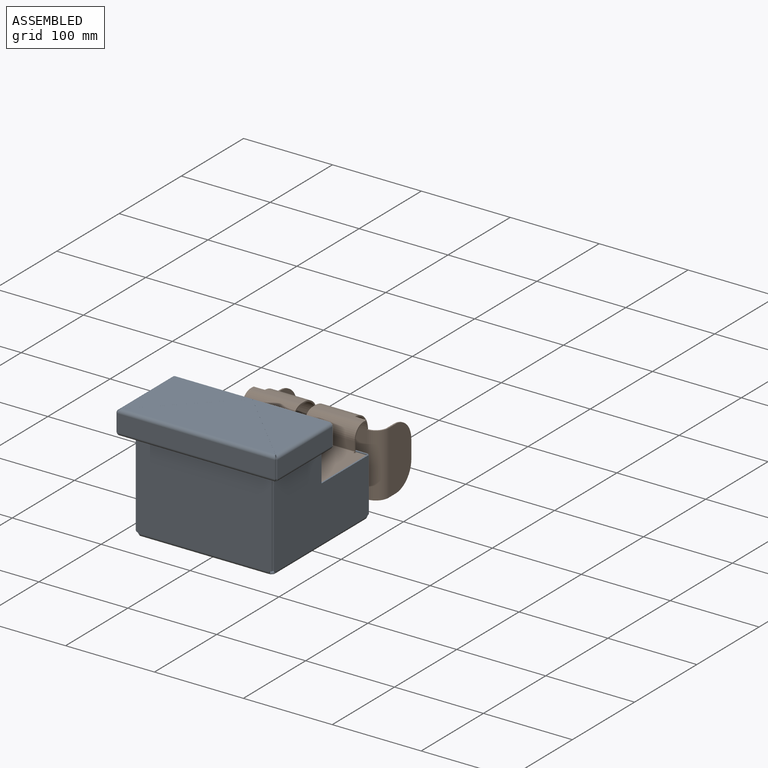
[diagram: assembled view]
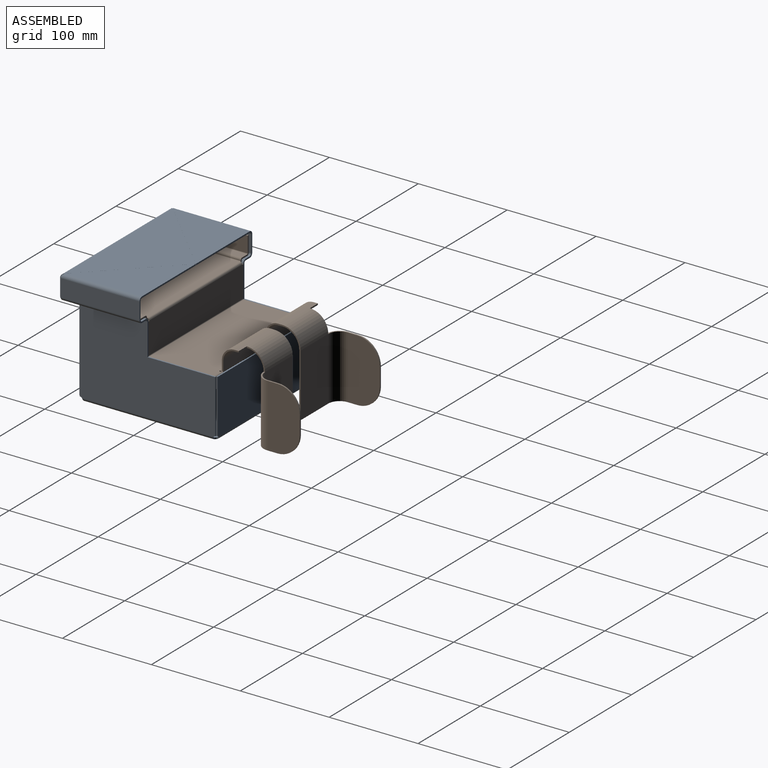
[diagram: assembled view, second angle]
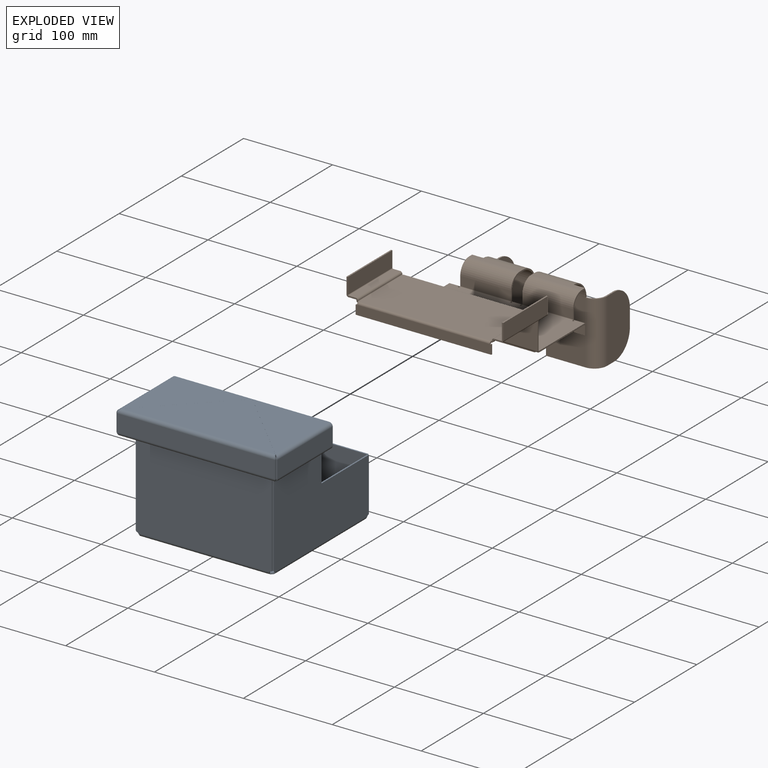
[diagram: exploded view]
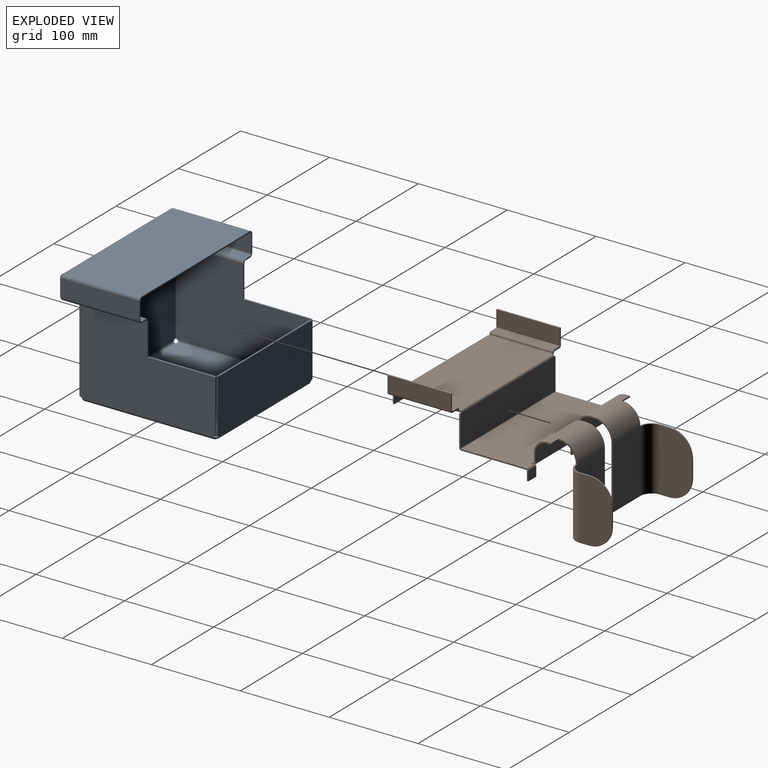
[diagram: exploded view, second angle]
ASSEMBLY  parts=2 mates=3
PART A: 122 faces, bbox 181x168.3x130.2 mm
  f0: plane 60.24x1.59mm, normal (1,0,0), area 95.6mm2, adj f2,f3,f4,f6
  f1: plane 60.24x1.59mm, normal (-1,0,0), area 95.6mm2, adj f2,f3,f4,f5
  f2: plane 152.35x1.59mm, normal (0,0,1), area 241.9mm2, adj f0,f1,f3,f4
  f3: plane 152.35x61.21mm, normal (0,1,0), area 9322.9mm2, adj f0,f1,f2,f5,f6,f9
  f4: plane 152.35x61.21mm, normal (0,-1,0), area 9322.9mm2, adj f0,f1,f2,f5,f6,f10
  f5: cylinder r=3.33mm len=2.26mm, axis (0,-1,0), area 4mm2, adj f1,f3,f4,f8
  f6: cylinder r=3.33mm len=2.26mm, axis (0,-1,0), area 4mm2, adj f0,f3,f4,f7
  f7: bspline ~3.87x3.87mm, area 8.5mm2, adj f6,f9,f10,f53
  f8: bspline ~3.87x3.87mm, area 8.5mm2, adj f5,f9,f10,f49
  f9: cylinder r=3.87mm len=147.83mm, axis (1,0,0), area 891.3mm2, adj f3,f7,f8,f11
  f10: cylinder r=2.29mm len=147.83mm, axis (1,0,0), area 526mm2, adj f4,f7,f8,f12
  f11: plane 147.83x147.83mm, normal (0,0,-1), area 21853.1mm2, adj f9,f15,f50,f54
  f12: plane 147.83x147.83mm, normal (0,0,1), area 21853.1mm2, adj f10,f16,f51,f55
  f13: bspline ~3.87x3.87mm, area 8.5mm2, adj f15,f16,f21,f52
  f14: bspline ~3.87x3.87mm, area 8.5mm2, adj f15,f16,f22,f48
  f15: cylinder r=3.87mm len=147.83mm, axis (1,0,0), area 891.3mm2, adj f11,f13,f14,f19
  f16: cylinder r=2.29mm len=147.83mm, axis (1,0,0), area 526mm2, adj f12,f13,f14,f20
  f17: plane 96.05x1.59mm, normal (1,0,0), area 152.5mm2, adj f19,f20,f21,f28
  f18: plane 96.05x1.59mm, normal (-1,0,0), area 152.5mm2, adj f19,f20,f22,f27
  f19: plane 152.35x97.03mm, normal (0,-1,0), area 14779.2mm2, adj f15,f17,f18,f21,f22,f30
  f20: plane 152.35x97.03mm, normal (0,1,0), area 14779.2mm2, adj f16,f17,f18,f21,f22,f29
  f21: cylinder r=3.33mm len=2.26mm, axis (0,1,0), area 4mm2, adj f13,f17,f19,f20
  f22: cylinder r=3.33mm len=2.26mm, axis (0,1,0), area 4mm2, adj f14,f18,f19,f20
  f23: plane 6.54x6.54mm, normal (-0.71,0.71,0), area 14.7mm2, adj f25,f26,f27,f31
  f24: plane 6.54x6.54mm, normal (0.71,0.71,0), area 14.7mm2, adj f25,f26,f28,f32
  f25: plane 173.19x6.54mm, normal (0,0,-1), area 1090mm2, adj f23,f24,f30,f33
  f26: plane 173.19x6.54mm, normal (0,0,1), area 1090mm2, adj f23,f24,f29,f34
  f27: bspline ~3.88x3.87mm, area 10.2mm2, adj f18,f23,f29,f30
  f28: bspline ~3.88x3.87mm, area 10.2mm2, adj f17,f24,f29,f30
  f29: cylinder r=3.87mm len=160.11mm, axis (-1,0,0), area 944.1mm2, adj f20,f26,f27,f28
  f30: cylinder r=2.29mm len=160.11mm, axis (-1,0,0), area 557.2mm2, adj f19,f25,f27,f28
  f31: bspline ~3.87x3.87mm, area 8.6mm2, adj f23,f33,f34,f35
  f32: bspline ~3.87x3.87mm, area 8.7mm2, adj f24,f33,f34,f36
  f33: cylinder r=3.87mm len=177.75mm, axis (-1,0,0), area 1071.4mm2, adj f25,f31,f32,f37
  f34: cylinder r=2.29mm len=177.75mm, axis (-1,0,0), area 632.3mm2, adj f26,f31,f32,f38
  f35: plane 19.24x1.59mm, normal (-1,0,0), area 30.5mm2, adj f31,f37,f38,f39
  f36: plane 19.24x1.59mm, normal (1,0,0), area 30.5mm2, adj f32,f37,f38,f40
  f37: plane 177.75x19.24mm, normal (0,-1,0), area 3420mm2, adj f33,f35,f36,f41
  f38: plane 177.75x19.24mm, normal (0,1,0), area 3420mm2, adj f34,f35,f36,f42
  f39: bspline ~3.87x3.87mm, area 8.7mm2, adj f35,f41,f42,f44
  f40: bspline ~3.87x3.87mm, area 8.6mm2, adj f36,f41,f42,f45
  f41: cylinder r=3.87mm len=177.75mm, axis (-1,0,0), area 1071.4mm2, adj f37,f39,f40,f46
  f42: cylinder r=2.29mm len=177.75mm, axis (-1,0,0), area 632.4mm2, adj f38,f39,f40,f47
  f43: plane 1.59x0.6mm, normal (0,1,0), area 1mm2, adj f44,f45,f46,f47
  f44: plane 86.3x86.3mm, normal (-0.71,0.71,0), area 193.7mm2, adj f39,f43,f46,f47
  f45: plane 86.3x86.3mm, normal (0.71,0.71,0), area 193.7mm2, adj f40,f43,f46,f47
  f46: plane 173.19x86.3mm, normal (0,0,1), area 7498.8mm2, adj f41,f43,f44,f45
  f47: plane 173.19x86.3mm, normal (0,0,-1), area 7498.8mm2, adj f42,f43,f44,f45
  f48: bspline ~3.87x3.87mm, area 8.5mm2, adj f14,f50,f51,f62
  f49: bspline ~3.87x3.87mm, area 8.5mm2, adj f8,f50,f51,f63
  f50: cylinder r=3.87mm len=147.83mm, axis (0,-1,0), area 891.3mm2, adj f11,f48,f49,f60
  f51: cylinder r=2.29mm len=147.83mm, axis (0,-1,0), area 526mm2, adj f12,f48,f49,f61
  f52: bspline ~3.87x3.87mm, area 8.5mm2, adj f13,f54,f55,f71
  f53: bspline ~3.87x3.87mm, area 8.5mm2, adj f7,f54,f55,f70
  f54: cylinder r=3.87mm len=147.83mm, axis (0,-1,0), area 891.3mm2, adj f11,f52,f53,f68
  f55: cylinder r=2.29mm len=147.83mm, axis (0,-1,0), area 526mm2, adj f12,f52,f53,f69
  f56: plane 60.24x1.59mm, normal (0,1,0), area 95.6mm2, adj f59,f60,f61,f63
  f57: plane 96.05x1.59mm, normal (0,-1,0), area 152.5mm2, adj f60,f61,f62,f106
  f58: plane 35.81x1.59mm, normal (0,1,0), area 56.9mm2, adj f59,f60,f61,f105
  f59: plane 76.17x1.59mm, normal (0,0,1), area 120.9mm2, adj f56,f58,f60,f61
  f60: plane 152.35x97.03mm, normal (-1,0,0), area 12051mm2, adj f50,f56,f57,f58,f59,f62,f63,f108
  f61: plane 152.35x97.03mm, normal (1,0,0), area 12051mm2, adj f51,f56,f57,f58,f59,f62,f63,f107
  f62: cylinder r=3.33mm len=2.26mm, axis (1,0,0), area 4mm2, adj f48,f57,f60,f61
  f63: cylinder r=3.33mm len=2.26mm, axis (1,0,0), area 4mm2, adj f49,f56,f60,f61
  f64: plane 96.05x1.59mm, normal (0,-1,0), area 152.5mm2, adj f68,f69,f71,f73
  f65: plane 60.24x1.59mm, normal (0,1,0), area 95.6mm2, adj f66,f68,f69,f70
  f66: plane 76.17x1.59mm, normal (0,0,1), area 120.9mm2, adj f65,f67,f68,f69
  f67: plane 35.81x1.59mm, normal (0,1,0), area 56.9mm2, adj f66,f68,f69,f72
  f68: plane 152.35x97.03mm, normal (1,0,0), area 12051mm2, adj f54,f64,f65,f66,f67,f70,f71,f75
  f69: plane 152.35x97.03mm, normal (-1,0,0), area 12051mm2, adj f55,f64,f65,f66,f67,f70,f71,f74
  f70: cylinder r=3.33mm len=2.26mm, axis (-1,0,0), area 4mm2, adj f53,f65,f68,f69
  f71: cylinder r=3.33mm len=2.26mm, axis (-1,0,0), area 4mm2, adj f52,f64,f68,f69
  f72: plane 3.87x3.87mm, normal (0,1,0), area 7.7mm2, adj f67,f74,f75,f77
  f73: bspline ~3.88x3.87mm, area 10.2mm2, adj f64,f74,f75,f76
  f74: cylinder r=3.87mm len=80.06mm, axis (0,1,0), area 472.1mm2, adj f69,f72,f73,f79
  f75: cylinder r=2.29mm len=80.06mm, axis (0,1,0), area 278.6mm2, adj f68,f72,f73,f78
  f76: plane 6.54x6.54mm, normal (-0.71,-0.71,0), area 14.7mm2, adj f73,f78,f79,f80
  f77: plane 6.54x1.59mm, normal (0,1,0), area 10.4mm2, adj f72,f78,f79,f81
  f78: plane 86.6x6.54mm, normal (0,0,-1), area 545mm2, adj f75,f76,f77,f82
  f79: plane 86.6x6.54mm, normal (0,0,1), area 545mm2, adj f74,f76,f77,f83
  f80: bspline ~3.87x3.87mm, area 8.6mm2, adj f76,f82,f83,f84
  f81: plane 3.87x3.87mm, normal (0,1,0), area 7.7mm2, adj f77,f82,f83,f85
  f82: cylinder r=3.87mm len=88.87mm, axis (0,-1,0), area 535.7mm2, adj f78,f80,f81,f86
  f83: cylinder r=2.29mm len=88.87mm, axis (0,-1,0), area 316.2mm2, adj f79,f80,f81,f87
  f84: plane 19.24x1.59mm, normal (0,-1,0), area 30.5mm2, adj f80,f86,f87,f88
  f85: plane 19.24x1.59mm, normal (0,1,0), area 30.5mm2, adj f81,f86,f87,f89
  f86: plane 88.87x19.24mm, normal (1,0,0), area 1710mm2, adj f82,f84,f85,f90
  f87: plane 88.87x19.24mm, normal (-1,0,0), area 1710mm2, adj f83,f84,f85,f91
  f88: bspline ~3.87x3.87mm, area 8.7mm2, adj f84,f90,f91,f93
  f89: plane 3.87x3.87mm, normal (0,1,0), area 7.7mm2, adj f85,f90,f91,f94
  f90: cylinder r=3.87mm len=88.87mm, axis (0,-1,0), area 535.7mm2, adj f86,f88,f89,f95
  f91: cylinder r=2.29mm len=88.87mm, axis (0,-1,0), area 316.2mm2, adj f87,f88,f89,f96
  f92: plane 1.59x0.3mm, normal (-1,0,0), area 0.5mm2, adj f93,f94,f95,f96
  f93: plane 86.3x86.3mm, normal (-0.71,-0.71,0), area 193.7mm2, adj f88,f92,f95,f96
  f94: plane 86.3x1.59mm, normal (0,1,0), area 137mm2, adj f89,f92,f95,f96
  f95: plane 86.6x86.3mm, normal (0,0,1), area 3749.4mm2, adj f90,f92,f93,f94
  f96: plane 86.6x86.3mm, normal (0,0,-1), area 3749.4mm2, adj f91,f92,f93,f94
  f97: plane 6.54x1.59mm, normal (0,1,0), area 10.4mm2, adj f99,f100,f101,f105
  f98: plane 6.54x6.54mm, normal (0.71,-0.71,0), area 14.7mm2, adj f99,f100,f102,f106
  f99: plane 86.6x6.54mm, normal (0,0,-1), area 545mm2, adj f97,f98,f103,f108
  f100: plane 86.6x6.54mm, normal (0,0,1), area 545mm2, adj f97,f98,f104,f107
  f101: plane 3.87x3.87mm, normal (0,1,0), area 7.7mm2, adj f97,f103,f104,f109
  f102: bspline ~3.87x3.87mm, area 8.7mm2, adj f98,f103,f104,f110
  f103: cylinder r=3.87mm len=88.87mm, axis (0,1,0), area 535.7mm2, adj f99,f101,f102,f111
  f104: cylinder r=2.29mm len=88.87mm, axis (0,1,0), area 316.2mm2, adj f100,f101,f102,f112
  f105: plane 3.87x3.87mm, normal (0,1,0), area 7.7mm2, adj f58,f97,f107,f108
  f106: bspline ~3.88x3.87mm, area 10.2mm2, adj f57,f98,f107,f108
  f107: cylinder r=3.87mm len=80.06mm, axis (0,1,0), area 472.1mm2, adj f61,f100,f105,f106
  f108: cylinder r=2.29mm len=80.06mm, axis (0,1,0), area 278.6mm2, adj f60,f99,f105,f106
  f109: plane 19.24x1.59mm, normal (0,1,0), area 30.5mm2, adj f101,f111,f112,f113
  f110: plane 19.24x1.59mm, normal (0,-1,0), area 30.5mm2, adj f102,f111,f112,f114
  f111: plane 88.87x19.24mm, normal (-1,0,0), area 1710mm2, adj f103,f109,f110,f115
  f112: plane 88.87x19.24mm, normal (1,0,0), area 1710mm2, adj f104,f109,f110,f116
  f113: plane 3.87x3.87mm, normal (0,1,0), area 7.7mm2, adj f109,f115,f116,f118
  f114: bspline ~3.87x3.87mm, area 8.6mm2, adj f110,f115,f116,f119
  f115: cylinder r=3.87mm len=88.87mm, axis (0,1,0), area 535.7mm2, adj f111,f113,f114,f120
  f116: cylinder r=2.29mm len=88.87mm, axis (0,1,0), area 316.2mm2, adj f112,f113,f114,f121
  f117: plane 1.59x0.3mm, normal (1,0,0), area 0.5mm2, adj f118,f119,f120,f121
  f118: plane 86.3x1.59mm, normal (0,1,0), area 137mm2, adj f113,f117,f120,f121
  f119: plane 86.3x86.3mm, normal (0.71,-0.71,0), area 193.7mm2, adj f114,f117,f120,f121
  f120: plane 86.6x86.3mm, normal (0,0,1), area 3749.4mm2, adj f115,f117,f118,f119
  f121: plane 86.6x86.3mm, normal (0,0,-1), area 3749.4mm2, adj f116,f117,f118,f119
PART B: 196 faces, bbox 176.4x238.8x126 mm
  f0: plane 149.29x71.5mm, normal (0,0,-1), area 10674.3mm2, adj f134,f145,f169,f194
  f1: plane 149.29x71.5mm, normal (0,0,1), area 10674.3mm2, adj f133,f144,f170,f195
  f2: plane 1.59x1.56mm, normal (0,0,1), area 2.5mm2, adj f3,f6,f7,f132
  f3: plane 34.99x1.59mm, normal (-1,0,0), area 55.5mm2, adj f2,f6,f7,f128
  f4: plane 34.99x1.59mm, normal (1,0,0), area 55.5mm2, adj f5,f6,f7,f127
  f5: plane 1.59x1.56mm, normal (0,0,1), area 2.5mm2, adj f4,f6,f7,f131
  f6: plane 152.4x34.99mm, normal (0,-1,0), area 5332.2mm2, adj f2,f3,f4,f5,f129,f134
  f7: plane 152.4x34.99mm, normal (0,1,0), area 5332.2mm2, adj f2,f3,f4,f5,f130,f133
  f8: plane 152.4x73.09mm, normal (0,0,-1), area 11016.9mm2, adj f10,f11,f12,f13,f14,f15,f16,f17
  f9: plane 152.4x73.09mm, normal (0,0,1), area 11016.9mm2, adj f10,f11,f12,f13,f14,f15,f16,f17
  f10: plane 73.09x1.59mm, normal (1,0,0), area 116mm2, adj f8,f9,f96,f127
  f11: plane 73.09x1.59mm, normal (-1,0,0), area 116mm2, adj f8,f9,f83,f128
  f12: cylinder r=0.84mm len=1.69mm, axis (0,0,1), area 4.2mm2, adj f8,f9,f13,f14
  f13: plane 1.59x0.3mm, normal (1,0,0), area 0.5mm2, adj f8,f9,f12,f92
  f14: plane 1.59x1.25mm, normal (-1,0,0), area 2mm2, adj f8,f9,f12,f25
  f15: plane 1.59x0.3mm, normal (-1,0,0), area 0.5mm2, adj f8,f9,f16,f91
  f16: cylinder r=0.84mm len=1.69mm, axis (0,0,1), area 4.2mm2, adj f8,f9,f15,f17
  f17: plane 1.59x1.25mm, normal (1,0,0), area 2mm2, adj f8,f9,f16,f79
  f18: cylinder r=0.84mm len=1.69mm, axis (0,0,1), area 4.2mm2, adj f8,f9,f19,f20
  f19: plane 1.59x0.3mm, normal (1,0,0), area 0.5mm2, adj f8,f9,f18,f88
  f20: plane 1.59x1.25mm, normal (-1,0,0), area 2mm2, adj f8,f9,f18,f24
  f21: cylinder r=0.84mm len=1.69mm, axis (0,0,1), area 4.2mm2, adj f8,f9,f22,f23
  f22: plane 1.59x0.3mm, normal (-1,0,0), area 0.5mm2, adj f8,f9,f21,f87
  f23: plane 1.59x1.25mm, normal (1,0,0), area 2mm2, adj f8,f9,f21,f84
  f24: plane 1.69x1.59mm, normal (0,-1,0), area 2.7mm2, adj f20,f78,f80,f81,f88
  f25: plane 1.69x1.59mm, normal (0,-1,0), area 2.7mm2, adj f14,f92,f95,f97,f98
  f26: plane 12.7x1.59mm, normal (0,0,-1), area 20.2mm2, adj f27,f28,f29,f30
  f27: plane 10.35x1.59mm, normal (1,0,0), area 16.4mm2, adj f26,f29,f30,f96
  f28: plane 10.35x1.59mm, normal (-1,0,0), area 16.4mm2, adj f26,f29,f30,f95
  f29: plane 12.7x10.35mm, normal (0,-1,0), area 131.5mm2, adj f26,f27,f28,f98
  f30: plane 12.7x10.35mm, normal (0,1,0), area 131.5mm2, adj f26,f27,f28,f97
  f31: plane 10.35x1.59mm, normal (-1,0,0), area 16.4mm2, adj f32,f34,f35,f83
  f32: plane 12.7x1.59mm, normal (0,0,-1), area 20.2mm2, adj f31,f33,f34,f35
  f33: plane 10.35x1.59mm, normal (1,0,0), area 16.4mm2, adj f32,f34,f35,f82
  f34: plane 12.7x10.35mm, normal (0,-1,0), area 131.5mm2, adj f31,f32,f33,f86
  f35: plane 12.7x10.35mm, normal (0,1,0), area 131.5mm2, adj f31,f32,f33,f85
  f36: plane 12.7x1.59mm, normal (0,0,-1), area 20.2mm2, adj f37,f38,f39,f40
  f37: plane 10.35x1.59mm, normal (1,0,0), area 16.4mm2, adj f36,f39,f40,f77
  f38: plane 10.35x1.59mm, normal (-1,0,0), area 16.4mm2, adj f36,f39,f40,f78
  f39: plane 12.7x10.35mm, normal (0,-1,0), area 131.5mm2, adj f36,f37,f38,f81
  f40: plane 12.7x10.35mm, normal (0,1,0), area 131.5mm2, adj f36,f37,f38,f80
  f41: plane 10.35x1.59mm, normal (1,0,0), area 16.4mm2, adj f43,f44,f88,f123
  f42: plane 10.35x1.59mm, normal (-1,0,0), area 16.4mm2, adj f43,f44,f87,f124
  f43: plane 57.15x10.35mm, normal (0,1,0), area 591.5mm2, adj f41,f42,f89,f126
  f44: plane 57.15x10.35mm, normal (0,-1,0), area 591.5mm2, adj f41,f42,f90,f125
  f45: plane 10.35x1.59mm, normal (1,0,0), area 16.4mm2, adj f47,f48,f73,f92
  f46: plane 10.35x1.59mm, normal (-1,0,0), area 16.4mm2, adj f47,f48,f74,f91
  f47: plane 57.15x10.35mm, normal (0,1,0), area 591.5mm2, adj f45,f46,f76,f93
  f48: plane 57.15x10.35mm, normal (0,-1,0), area 591.5mm2, adj f45,f46,f75,f94
  f49: plane 12.7x1.59mm, normal (0,1,0), area 20.2mm2, adj f50,f52,f53,f69
  f50: plane 4.76x1.59mm, normal (1,0,0), area 7.6mm2, adj f49,f52,f53,f73
  f51: plane 4.76x1.59mm, normal (-1,0,0), area 7.6mm2, adj f52,f53,f70,f74
  f52: plane 57.15x4.76mm, normal (0,0,-1), area 272.2mm2, adj f49,f50,f51,f72,f76
  f53: plane 57.15x4.76mm, normal (0,0,1), area 272.2mm2, adj f49,f50,f51,f71,f75
  f54: plane 70.8x1.59mm, normal (-1,0,0), area 112.4mm2, adj f55,f56,f57,f70
  f55: plane 44.45x1.59mm, normal (0,0,-1), area 70.6mm2, adj f54,f56,f57,f66
  f56: plane 70.8x44.45mm, normal (0,-1,0), area 3147.2mm2, adj f54,f55,f67,f72
  f57: plane 70.8x44.45mm, normal (0,1,0), area 3147.2mm2, adj f54,f55,f68,f71
  f58: plane 20x1.59mm, normal (0,1,0), area 31.8mm2, adj f61,f62,f63,f64
  f59: plane 11.11x1.59mm, normal (0,0,1), area 17.6mm2, adj f61,f62,f63,f65
  f60: plane 11.11x1.59mm, normal (0,0,-1), area 17.6mm2, adj f61,f62,f64,f66
  f61: plane 70.8x36.51mm, normal (1,0,0), area 2308.3mm2, adj f58,f59,f60,f63,f64,f67
  f62: plane 70.8x36.51mm, normal (-1,0,0), area 2308.3mm2, adj f58,f59,f60,f63,f64,f68
  f63: cylinder r=25.4mm len=25.4mm, axis (1,0,0), area 63.3mm2, adj f58,f59,f61,f62
  f64: cylinder r=25.4mm len=25.4mm, axis (1,0,0), area 63.3mm2, adj f58,f60,f61,f62
  f65: plane 14.29x14.29mm, normal (0,0,1), area 33.6mm2, adj f59,f67,f68,f69
  f66: plane 14.29x14.29mm, normal (0,0,-1), area 33.6mm2, adj f55,f60,f67,f68
  f67: cylinder r=14.29mm len=70.8mm, axis (0,0,1), area 1589mm2, adj f56,f61,f65,f66
  f68: cylinder r=12.7mm len=70.8mm, axis (0,0,1), area 1412.4mm2, adj f57,f62,f65,f66
  f69: plane 20.64x20.64mm, normal (1,0,0), area 49.5mm2, adj f49,f65,f71,f72
  f70: plane 20.64x20.64mm, normal (-1,0,0), area 49.5mm2, adj f51,f54,f71,f72
  f71: cylinder r=20.64mm len=44.45mm, axis (1,0,0), area 1440.9mm2, adj f53,f57,f69,f70
  f72: cylinder r=19.05mm len=44.45mm, axis (1,0,0), area 1330.1mm2, adj f52,f56,f69,f70
  f73: plane 14.29x14.29mm, normal (1,0,0), area 33.6mm2, adj f45,f50,f75,f76
  f74: plane 14.29x14.29mm, normal (-1,0,0), area 33.6mm2, adj f46,f51,f75,f76
  f75: cylinder r=14.29mm len=57.15mm, axis (1,0,0), area 1282.6mm2, adj f48,f53,f73,f74
  f76: cylinder r=12.7mm len=57.15mm, axis (1,0,0), area 1140.1mm2, adj f47,f52,f73,f74
  f77: plane 2.35x2.05mm, normal (1,0,0), area 2.9mm2, adj f37,f79,f80,f81,f93
  f78: plane 2.35x2.05mm, normal (-1,0,0), area 2.9mm2, adj f24,f38,f80,f81,f89
  f79: plane 1.69x1.59mm, normal (0,-1,0), area 2.7mm2, adj f17,f77,f80,f81,f91
  f80: cylinder r=2.35mm len=12.7mm, axis (1,0,0), area 46.9mm2, adj f9,f24,f40,f77,f78,f79,f88,f91
  f81: cylinder r=0.76mm len=12.7mm, axis (1,0,0), area 15.2mm2, adj f8,f24,f39,f77,f78,f79
  f82: plane 2.35x2.05mm, normal (1,0,0), area 2.9mm2, adj f33,f84,f85,f86,f89
  f83: plane 2.35x2.35mm, normal (-1,0,0), area 3.9mm2, adj f11,f31,f85,f86
  f84: plane 1.69x1.59mm, normal (0,-1,0), area 2.7mm2, adj f23,f82,f85,f86,f87
  f85: cylinder r=2.35mm len=12.7mm, axis (1,0,0), area 46.9mm2, adj f9,f35,f82,f83,f84,f87
  f86: cylinder r=0.76mm len=12.7mm, axis (1,0,0), area 15.2mm2, adj f8,f34,f82,f83,f84
  f87: plane 2.35x2.35mm, normal (-1,0,0), area 2.9mm2, adj f22,f42,f84,f85,f89,f90
  f88: plane 2.35x2.35mm, normal (1,0,0), area 2.9mm2, adj f19,f24,f41,f80,f89,f90
  f89: cylinder r=2.35mm len=57.15mm, axis (-1,0,0), area 210.9mm2, adj f8,f43,f78,f82,f87,f88
  f90: cylinder r=0.76mm len=57.15mm, axis (-1,0,0), area 68.4mm2, adj f9,f44,f87,f88
  f91: plane 2.35x2.35mm, normal (-1,0,0), area 2.9mm2, adj f15,f46,f79,f80,f93,f94
  f92: plane 2.35x2.35mm, normal (1,0,0), area 2.9mm2, adj f13,f25,f45,f93,f94,f97
  f93: cylinder r=2.35mm len=57.15mm, axis (-1,0,0), area 210.9mm2, adj f8,f47,f77,f91,f92,f95
  f94: cylinder r=0.76mm len=57.15mm, axis (-1,0,0), area 68.4mm2, adj f9,f48,f91,f92
  f95: plane 2.35x2.05mm, normal (-1,0,0), area 2.9mm2, adj f25,f28,f93,f97,f98
  f96: plane 2.35x2.35mm, normal (1,0,0), area 3.9mm2, adj f10,f27,f97,f98
  f97: cylinder r=2.35mm len=12.7mm, axis (1,0,0), area 46.9mm2, adj f9,f25,f30,f92,f95,f96
  f98: cylinder r=0.76mm len=12.7mm, axis (1,0,0), area 15.2mm2, adj f8,f25,f29,f95,f96
  f99: plane 12.7x1.59mm, normal (0,1,0), area 20.2mm2, adj f101,f102,f103,f120
  f100: plane 4.76x1.59mm, normal (1,0,0), area 7.6mm2, adj f102,f103,f119,f123
  f101: plane 4.76x1.59mm, normal (-1,0,0), area 7.6mm2, adj f99,f102,f103,f124
  f102: plane 57.15x4.76mm, normal (0,0,-1), area 272.2mm2, adj f99,f100,f101,f122,f126
  f103: plane 57.15x4.76mm, normal (0,0,1), area 272.2mm2, adj f99,f100,f101,f121,f125
  f104: plane 44.45x1.59mm, normal (0,0,-1), area 70.6mm2, adj f105,f106,f107,f115
  f105: plane 70.8x1.59mm, normal (1,0,0), area 112.4mm2, adj f104,f106,f107,f119
  f106: plane 70.8x44.45mm, normal (0,-1,0), area 3147.2mm2, adj f104,f105,f117,f122
  f107: plane 70.8x44.45mm, normal (0,1,0), area 3147.2mm2, adj f104,f105,f118,f121
  f108: plane 20x1.59mm, normal (0,1,0), area 31.8mm2, adj f111,f112,f113,f114
  f109: plane 11.11x1.59mm, normal (0,0,-1), area 17.6mm2, adj f111,f112,f114,f115
  f110: plane 11.11x1.59mm, normal (0,0,1), area 17.6mm2, adj f111,f112,f113,f116
  f111: plane 70.8x36.51mm, normal (-1,0,0), area 2308.3mm2, adj f108,f109,f110,f113,f114,f117
  f112: plane 70.8x36.51mm, normal (1,0,0), area 2308.3mm2, adj f108,f109,f110,f113,f114,f118
  f113: cylinder r=25.4mm len=25.4mm, axis (-1,0,0), area 63.3mm2, adj f108,f110,f111,f112
  f114: cylinder r=25.4mm len=25.4mm, axis (-1,0,0), area 63.3mm2, adj f108,f109,f111,f112
  f115: plane 14.29x14.29mm, normal (0,0,-1), area 33.6mm2, adj f104,f109,f117,f118
  f116: plane 14.29x14.29mm, normal (0,0,1), area 33.6mm2, adj f110,f117,f118,f120
  f117: cylinder r=14.29mm len=70.8mm, axis (0,0,-1), area 1589mm2, adj f106,f111,f115,f116
  f118: cylinder r=12.7mm len=70.8mm, axis (0,0,-1), area 1412.4mm2, adj f107,f112,f115,f116
  f119: plane 20.64x20.64mm, normal (1,0,0), area 49.5mm2, adj f100,f105,f121,f122
  f120: plane 20.64x20.64mm, normal (-1,0,0), area 49.5mm2, adj f99,f116,f121,f122
  f121: cylinder r=20.64mm len=44.45mm, axis (1,0,0), area 1440.9mm2, adj f103,f107,f119,f120
  f122: cylinder r=19.05mm len=44.45mm, axis (1,0,0), area 1330.1mm2, adj f102,f106,f119,f120
  f123: plane 14.29x14.29mm, normal (1,0,0), area 33.6mm2, adj f41,f100,f125,f126
  f124: plane 14.29x14.29mm, normal (-1,0,0), area 33.6mm2, adj f42,f101,f125,f126
  f125: cylinder r=14.29mm len=57.15mm, axis (1,0,0), area 1282.6mm2, adj f44,f103,f123,f124
  f126: cylinder r=12.7mm len=57.15mm, axis (1,0,0), area 1140.1mm2, adj f43,f102,f123,f124
  f127: plane 2.35x2.35mm, normal (1,0,0), area 3.9mm2, adj f4,f10,f129,f130
  f128: plane 2.35x2.35mm, normal (-1,0,0), area 3.9mm2, adj f3,f11,f129,f130
  f129: cylinder r=2.35mm len=152.4mm, axis (1,0,0), area 562.4mm2, adj f6,f8,f127,f128
  f130: cylinder r=0.76mm len=152.4mm, axis (1,0,0), area 182.4mm2, adj f7,f9,f127,f128
  f131: plane 2.35x2.35mm, normal (1,0,0), area 3.9mm2, adj f5,f133,f134,f193
  f132: plane 2.35x2.35mm, normal (-1,0,0), area 3.9mm2, adj f2,f133,f134,f167
  f133: cylinder r=2.35mm len=149.29mm, axis (1,0,0), area 551mm2, adj f1,f7,f131,f132
  f134: cylinder r=0.76mm len=149.29mm, axis (1,0,0), area 178.7mm2, adj f0,f6,f131,f132
  f135: plane 1.59x1.56mm, normal (0,0,1), area 2.5mm2, adj f138,f140,f141,f142
  f136: plane 10.35x1.59mm, normal (-1,0,0), area 16.4mm2, adj f137,f139,f140,f141
  f137: plane 1.59x1.56mm, normal (0,0,1), area 2.5mm2, adj f136,f140,f141,f143
  f138: plane 10.35x1.59mm, normal (1,0,0), area 16.4mm2, adj f135,f139,f140,f141
  f139: plane 152.4x1.59mm, normal (0,0,-1), area 241.9mm2, adj f136,f138,f140,f141
  f140: plane 152.4x10.35mm, normal (0,1,0), area 1577.4mm2, adj f135,f136,f137,f138,f139,f145
  f141: plane 152.4x10.35mm, normal (0,-1,0), area 1577.4mm2, adj f135,f136,f137,f138,f139,f144
  f142: plane 2.35x2.35mm, normal (1,0,0), area 3.9mm2, adj f135,f144,f145,f192
  f143: plane 2.35x2.35mm, normal (-1,0,0), area 3.9mm2, adj f137,f144,f145,f168
  f144: cylinder r=2.35mm len=149.29mm, axis (1,0,0), area 551mm2, adj f1,f141,f142,f143
  f145: cylinder r=0.76mm len=149.29mm, axis (1,0,0), area 178.7mm2, adj f0,f140,f142,f143
  f146: plane 1.59x0.06mm, normal (0,1,0), area 0.1mm2, adj f148,f149,f163,f167
  f147: plane 1.59x0.06mm, normal (0,-1,0), area 0.1mm2, adj f148,f149,f164,f168
  f148: plane 71.5x0.06mm, normal (-1,0,0), area 4.5mm2, adj f146,f147,f166,f169
  f149: plane 71.5x0.06mm, normal (1,0,0), area 4.5mm2, adj f146,f147,f165,f170
  f150: plane 8.1x1.59mm, normal (0,1,0), area 12.9mm2, adj f152,f153,f159,f163
  f151: plane 8.1x1.59mm, normal (0,-1,0), area 12.9mm2, adj f152,f153,f160,f164
  f152: plane 71.5x8.1mm, normal (0,0,-1), area 578.9mm2, adj f150,f151,f161,f166
  f153: plane 71.5x8.1mm, normal (0,0,1), area 578.9mm2, adj f150,f151,f162,f165
  f154: plane 71.5x1.59mm, normal (0,0,1), area 113.5mm2, adj f155,f156,f157,f158
  f155: plane 17.97x1.59mm, normal (0,1,0), area 28.5mm2, adj f154,f157,f158,f159
  f156: plane 17.97x1.59mm, normal (0,-1,0), area 28.5mm2, adj f154,f157,f158,f160
  f157: plane 71.5x17.97mm, normal (-1,0,0), area 1284.9mm2, adj f154,f155,f156,f161
  f158: plane 71.5x17.97mm, normal (1,0,0), area 1284.9mm2, adj f154,f155,f156,f162
  f159: plane 2.35x2.35mm, normal (0,1,0), area 3.9mm2, adj f150,f155,f161,f162
  f160: plane 2.35x2.35mm, normal (0,-1,0), area 3.9mm2, adj f151,f156,f161,f162
  f161: cylinder r=2.35mm len=71.5mm, axis (0,1,0), area 263.9mm2, adj f152,f157,f159,f160
  f162: cylinder r=0.76mm len=71.5mm, axis (0,1,0), area 85.6mm2, adj f153,f158,f159,f160
  f163: plane 2.35x2.35mm, normal (0,1,0), area 3.9mm2, adj f146,f150,f165,f166
  f164: plane 2.35x2.35mm, normal (0,-1,0), area 3.9mm2, adj f147,f151,f165,f166
  f165: cylinder r=2.35mm len=71.5mm, axis (0,1,0), area 263.9mm2, adj f149,f153,f163,f164
  f166: cylinder r=0.76mm len=71.5mm, axis (0,1,0), area 85.6mm2, adj f148,f152,f163,f164
  f167: plane 2.35x2.35mm, normal (0,1,0), area 3.9mm2, adj f132,f146,f169,f170
  f168: plane 2.35x2.35mm, normal (0,-1,0), area 3.9mm2, adj f143,f147,f169,f170
  f169: cylinder r=2.35mm len=71.5mm, axis (0,1,0), area 263.9mm2, adj f0,f148,f167,f168
  f170: cylinder r=0.76mm len=71.5mm, axis (0,1,0), area 85.6mm2, adj f1,f149,f167,f168
  f171: plane 1.59x0.06mm, normal (0,-1,0), area 0.1mm2, adj f173,f174,f188,f192
  f172: plane 1.59x0.06mm, normal (0,1,0), area 0.1mm2, adj f173,f174,f189,f193
  f173: plane 71.5x0.06mm, normal (1,0,0), area 4.5mm2, adj f171,f172,f191,f194
  f174: plane 71.5x0.06mm, normal (-1,0,0), area 4.5mm2, adj f171,f172,f190,f195
  f175: plane 8.1x1.59mm, normal (0,-1,0), area 12.9mm2, adj f177,f178,f184,f188
  f176: plane 8.1x1.59mm, normal (0,1,0), area 12.9mm2, adj f177,f178,f185,f189
  f177: plane 71.5x8.1mm, normal (0,0,-1), area 578.9mm2, adj f175,f176,f186,f191
  f178: plane 71.5x8.1mm, normal (0,0,1), area 578.9mm2, adj f175,f176,f187,f190
  f179: plane 71.5x1.59mm, normal (0,0,1), area 113.5mm2, adj f180,f181,f182,f183
  f180: plane 17.97x1.59mm, normal (0,-1,0), area 28.5mm2, adj f179,f182,f183,f184
  f181: plane 17.97x1.59mm, normal (0,1,0), area 28.5mm2, adj f179,f182,f183,f185
  f182: plane 71.5x17.97mm, normal (1,0,0), area 1284.9mm2, adj f179,f180,f181,f186
  f183: plane 71.5x17.97mm, normal (-1,0,0), area 1284.9mm2, adj f179,f180,f181,f187
  f184: plane 2.35x2.35mm, normal (0,-1,0), area 3.9mm2, adj f175,f180,f186,f187
  f185: plane 2.35x2.35mm, normal (0,1,0), area 3.9mm2, adj f176,f181,f186,f187
  f186: cylinder r=2.35mm len=71.5mm, axis (0,-1,0), area 263.9mm2, adj f177,f182,f184,f185
  f187: cylinder r=0.76mm len=71.5mm, axis (0,-1,0), area 85.6mm2, adj f178,f183,f184,f185
  f188: plane 2.35x2.35mm, normal (0,-1,0), area 3.9mm2, adj f171,f175,f190,f191
  f189: plane 2.35x2.35mm, normal (0,1,0), area 3.9mm2, adj f172,f176,f190,f191
  f190: cylinder r=2.35mm len=71.5mm, axis (0,-1,0), area 263.9mm2, adj f174,f178,f188,f189
  f191: cylinder r=0.76mm len=71.5mm, axis (0,-1,0), area 85.6mm2, adj f173,f177,f188,f189
  f192: plane 2.35x2.35mm, normal (0,-1,0), area 3.9mm2, adj f142,f171,f194,f195
  f193: plane 2.35x2.35mm, normal (0,1,0), area 3.9mm2, adj f131,f172,f194,f195
  f194: cylinder r=2.35mm len=71.5mm, axis (0,-1,0), area 263.9mm2, adj f0,f173,f192,f193
  f195: cylinder r=0.76mm len=71.5mm, axis (0,-1,0), area 85.6mm2, adj f1,f174,f192,f193
PLACE A rot(axis=(-0.15,0.98,0.15),0deg) t=(0,-76.2,52.39)mm
PLACE B rot(axis=(-0.62,0.78,0.02),0deg) t=(0,-76.2,52.39)mm
MATE planar B.f7 <-> A.f67  axis (0,1,0) through (0,0,65.85)mm
MATE planar B.f4 <-> A.f69  axis (1,0,0) through (76.2,-0.79,83.34)mm
MATE planar A.f79 <-> B.f177  axis (0,0,1) through (83.34,0,104.77)mm
